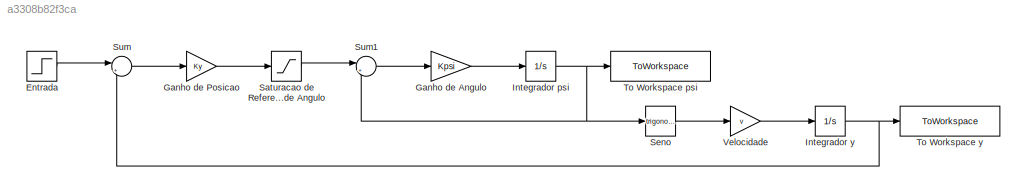
MODEL slx_a3308b82f3ca
KIND model
CONFIG AbsTol = auto
CONFIG EnableMultiTasking = off
CONFIG FixedStep = 1e-3
CONFIG MaxStep = auto
CONFIG MinStep = auto
CONFIG RelTol = 1e-3
CONFIG SampleTimeConstraint = Unconstrained
CONFIG SolverName = FixedStepAuto
CONFIG StartTime = 0.0
CONFIG StopTime = 2
BLOCK [Step] Entrada
  After = yr
  SampleTime = 0
  Time = 0
BLOCK [Gain] Ganho de Angulo
  Gain = Kpsi
BLOCK [Gain] Ganho de Posicao
  Gain = Ky
BLOCK [Integrator] Integrador psi
  InitialCondition = psi0
BLOCK [Integrator] Integrador y
  InitialCondition = y0
BLOCK [Saturate] Saturacao de Referencia de Angulo
  LowerLimit = -psirMax
  UpperLimit = psirMax
BLOCK [Trigonometry] Seno
BLOCK [Sum] Sum
  Inputs = |+-
BLOCK [Sum] Sum1
  Inputs = |+-
BLOCK [ToWorkspace] To Workspace psi
  FixptAsFi = on
  MaxDataPoints = inf
  SampleTime = -1
  SaveFormat = Structure With Time
  VariableName = psi
BLOCK [ToWorkspace] To Workspace y
  FixptAsFi = on
  MaxDataPoints = inf
  SampleTime = -1
  SaveFormat = Structure With Time
  VariableName = y
BLOCK [Gain] Velocidade
  Gain = v
LINE Entrada:1 -> Sum:1
LINE Ganho de Angulo:1 -> Integrador psi:1
LINE Ganho de Posicao:1 -> Saturacao de Referencia de Angulo:1
NET Integrador psi:1 -> Seno:1, Sum1:2, To Workspace psi:1
NET Integrador y:1 -> Sum:2, To Workspace y:1
LINE Saturacao de Referencia de Angulo:1 -> Sum1:1
LINE Seno:1 -> Velocidade:1
LINE Sum1:1 -> Ganho de Angulo:1
LINE Sum:1 -> Ganho de Posicao:1
LINE Velocidade:1 -> Integrador y:1
note: NET lines group one-source signal fan-out (src -> all destinations, sorted); 1:1 wires keep LINE
